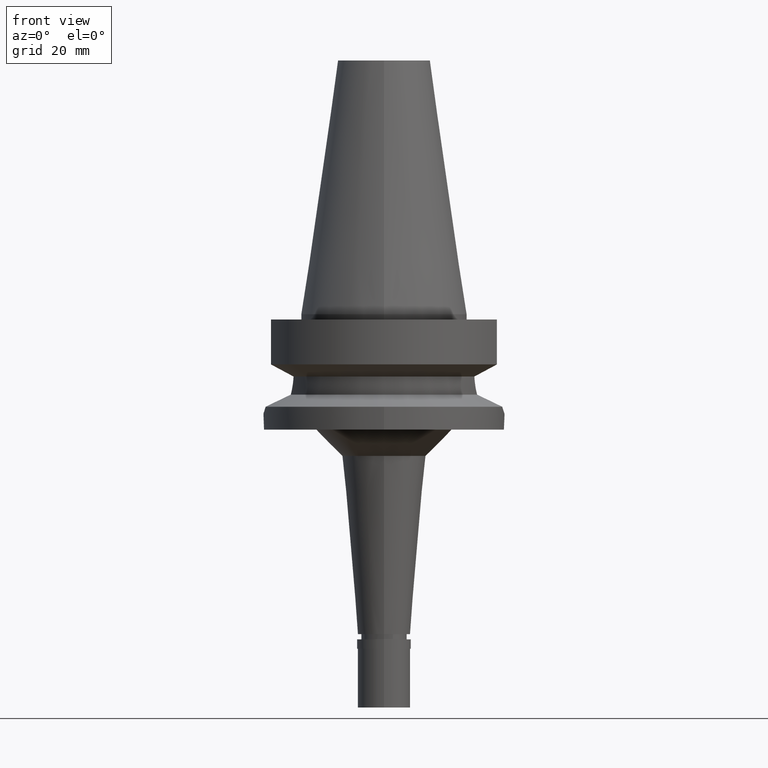
[diagram: clean part render]
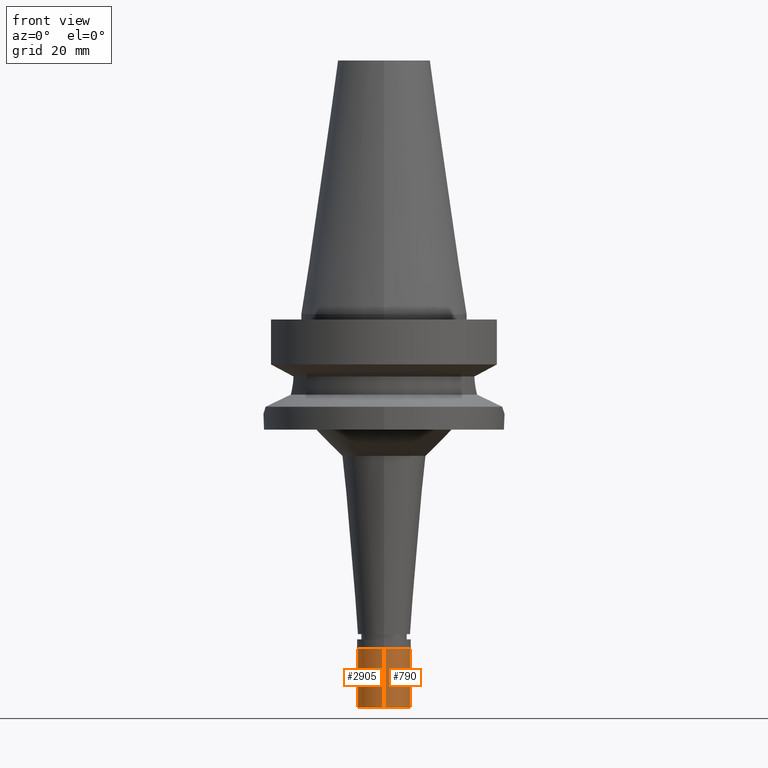
[diagram: same view with one multi-face feature highlighted, each face labeled with its STEP entity id]
A machine part, front view. The highlighted faces form ONE feature: a constant-radius fillet chain: 2 tangent blend faces with common blend radius 5 mm. The faces share edges in the B-rep.
Their STEP definitions:
[1] entity #790 (Cylinder):
#18 = DIRECTION ( 'NONE',  ( 0.0000000000000000000, 0.0000000000000000000, 1.000000000000000000 ) ) ;
#101 = FACE_OUTER_BOUND ( 'NONE', #1956, .T. ) ;
#114 = CARTESIAN_POINT ( 'NONE',  ( 0.0000000000000000000, -5.000000000000000000, -13.00000000000000000 ) ) ;
#415 = ORIENTED_EDGE ( 'NONE', *, *, #2489, .F. ) ;
#621 = VERTEX_POINT ( 'NONE', #114 ) ;
#622 = VERTEX_POINT ( 'NONE', #1734 ) ;
#625 = VECTOR ( 'NONE', #2892, 1000.000000000000000 ) ;
#628 = CARTESIAN_POINT ( 'NONE',  ( 0.0000000000000000000, -5.000000000000000000, -1.800000000000000044 ) ) ;
#670 = AXIS2_PLACEMENT_3D ( 'NONE', #1464, #1979, #2655 ) ;
#790 = ADVANCED_FACE ( 'NONE', ( #101 ), #1479, .T. ) ;
#931 = EDGE_CURVE ( 'NONE', #1564, #621, #2447, .T. ) ;
#1027 = CARTESIAN_POINT ( 'NONE',  ( 0.0000000000000000000, 0.0000000000000000000, -13.65000000000000036 ) ) ;
#1041 = ORIENTED_EDGE ( 'NONE', *, *, #931, .T. ) ;
#1286 = DIRECTION ( 'NONE',  ( 0.0000000000000000000, 0.0000000000000000000, 1.000000000000000000 ) ) ;
#1335 = DIRECTION ( 'NONE',  ( 0.0000000000000000000, 0.0000000000000000000, -1.000000000000000000 ) ) ;
#1464 = CARTESIAN_POINT ( 'NONE',  ( 0.0000000000000000000, 0.0000000000000000000, -1.800000000000000044 ) ) ;
#1468 = EDGE_CURVE ( 'NONE', #621, #622, #2946, .T. ) ;
#1479 = CYLINDRICAL_SURFACE ( 'NONE', #1546, 5.000000000000000000 ) ;
#1546 = AXIS2_PLACEMENT_3D ( 'NONE', #1027, #1286, #2143 ) ;
#1564 = VERTEX_POINT ( 'NONE', #628 ) ;
#1634 = ORIENTED_EDGE ( 'NONE', *, *, #2251, .T. ) ;
#1734 = CARTESIAN_POINT ( 'NONE',  ( 0.0000000000000000000, 5.000000000000000000, -13.00000000000000000 ) ) ;
#1956 = EDGE_LOOP ( 'NONE', ( #1634, #1041, #2673, #415 ) ) ;
#1979 = DIRECTION ( 'NONE',  ( 0.0000000000000000000, 0.0000000000000000000, -1.000000000000000000 ) ) ;
#2031 = AXIS2_PLACEMENT_3D ( 'NONE', #2278, #18, #2708 ) ;
#2036 = CARTESIAN_POINT ( 'NONE',  ( 0.0000000000000000000, -5.000000000000000000, -1.800000000000000044 ) ) ;
#2143 = DIRECTION ( 'NONE',  ( 0.0000000000000000000, 1.000000000000000000, 0.0000000000000000000 ) ) ;
#2251 = EDGE_CURVE ( 'NONE', #2859, #1564, #2315, .T. ) ;
#2278 = CARTESIAN_POINT ( 'NONE',  ( 0.0000000000000000000, 0.0000000000000000000, -13.00000000000000000 ) ) ;
#2284 = LINE ( 'NONE', #2912, #2717 ) ;
#2315 = CIRCLE ( 'NONE', #670, 5.000000000000000000 ) ;
#2383 = CARTESIAN_POINT ( 'NONE',  ( 0.0000000000000000000, 5.000000000000000000, -1.800000000000000044 ) ) ;
#2447 = LINE ( 'NONE', #2036, #625 ) ;
#2489 = EDGE_CURVE ( 'NONE', #2859, #622, #2284, .T. ) ;
#2655 = DIRECTION ( 'NONE',  ( 0.0000000000000000000, 1.000000000000000000, 0.0000000000000000000 ) ) ;
#2673 = ORIENTED_EDGE ( 'NONE', *, *, #1468, .T. ) ;
#2708 = DIRECTION ( 'NONE',  ( 0.0000000000000000000, -1.000000000000000000, 0.0000000000000000000 ) ) ;
#2717 = VECTOR ( 'NONE', #1335, 1000.000000000000000 ) ;
#2859 = VERTEX_POINT ( 'NONE', #2383 ) ;
#2892 = DIRECTION ( 'NONE',  ( 0.0000000000000000000, 0.0000000000000000000, -1.000000000000000000 ) ) ;
#2912 = CARTESIAN_POINT ( 'NONE',  ( 0.0000000000000000000, 5.000000000000000000, -1.800000000000000044 ) ) ;
#2946 = CIRCLE ( 'NONE', #2031, 5.000000000000000000 ) ;
[2] entity #2905 (Cylinder):
#83 = AXIS2_PLACEMENT_3D ( 'NONE', #85, #1039, #2429 ) ;
#85 = CARTESIAN_POINT ( 'NONE',  ( 0.0000000000000000000, 0.0000000000000000000, -1.800000000000000044 ) ) ;
#114 = CARTESIAN_POINT ( 'NONE',  ( 0.0000000000000000000, -5.000000000000000000, -13.00000000000000000 ) ) ;
#308 = DIRECTION ( 'NONE',  ( 0.0000000000000000000, 1.000000000000000000, 0.0000000000000000000 ) ) ;
#411 = EDGE_CURVE ( 'NONE', #622, #621, #1702, .T. ) ;
#621 = VERTEX_POINT ( 'NONE', #114 ) ;
#622 = VERTEX_POINT ( 'NONE', #1734 ) ;
#625 = VECTOR ( 'NONE', #2892, 1000.000000000000000 ) ;
#628 = CARTESIAN_POINT ( 'NONE',  ( 0.0000000000000000000, -5.000000000000000000, -1.800000000000000044 ) ) ;
#931 = EDGE_CURVE ( 'NONE', #1564, #621, #2447, .T. ) ;
#940 = AXIS2_PLACEMENT_3D ( 'NONE', #1443, #2155, #308 ) ;
#1039 = DIRECTION ( 'NONE',  ( 0.0000000000000000000, 0.0000000000000000000, -1.000000000000000000 ) ) ;
#1236 = DIRECTION ( 'NONE',  ( 0.0000000000000000000, 0.0000000000000000000, 1.000000000000000000 ) ) ;
#1332 = ORIENTED_EDGE ( 'NONE', *, *, #2489, .T. ) ;
#1335 = DIRECTION ( 'NONE',  ( 0.0000000000000000000, 0.0000000000000000000, -1.000000000000000000 ) ) ;
#1443 = CARTESIAN_POINT ( 'NONE',  ( 0.0000000000000000000, 0.0000000000000000000, -13.65000000000000036 ) ) ;
#1505 = AXIS2_PLACEMENT_3D ( 'NONE', #2387, #1236, #1897 ) ;
#1564 = VERTEX_POINT ( 'NONE', #628 ) ;
#1678 = CYLINDRICAL_SURFACE ( 'NONE', #940, 5.000000000000000000 ) ;
#1702 = CIRCLE ( 'NONE', #1505, 5.000000000000000000 ) ;
#1705 = ORIENTED_EDGE ( 'NONE', *, *, #931, .F. ) ;
#1734 = CARTESIAN_POINT ( 'NONE',  ( 0.0000000000000000000, 5.000000000000000000, -13.00000000000000000 ) ) ;
#1894 = CIRCLE ( 'NONE', #83, 5.000000000000000000 ) ;
#1897 = DIRECTION ( 'NONE',  ( 0.0000000000000000000, 1.000000000000000000, 0.0000000000000000000 ) ) ;
#2036 = CARTESIAN_POINT ( 'NONE',  ( 0.0000000000000000000, -5.000000000000000000, -1.800000000000000044 ) ) ;
#2155 = DIRECTION ( 'NONE',  ( 0.0000000000000000000, 0.0000000000000000000, 1.000000000000000000 ) ) ;
#2177 = ORIENTED_EDGE ( 'NONE', *, *, #411, .T. ) ;
#2284 = LINE ( 'NONE', #2912, #2717 ) ;
#2383 = CARTESIAN_POINT ( 'NONE',  ( 0.0000000000000000000, 5.000000000000000000, -1.800000000000000044 ) ) ;
#2387 = CARTESIAN_POINT ( 'NONE',  ( 0.0000000000000000000, 0.0000000000000000000, -13.00000000000000000 ) ) ;
#2429 = DIRECTION ( 'NONE',  ( 0.0000000000000000000, -1.000000000000000000, 0.0000000000000000000 ) ) ;
#2432 = ORIENTED_EDGE ( 'NONE', *, *, #2880, .T. ) ;
#2447 = LINE ( 'NONE', #2036, #625 ) ;
#2489 = EDGE_CURVE ( 'NONE', #2859, #622, #2284, .T. ) ;
#2624 = EDGE_LOOP ( 'NONE', ( #2177, #1705, #2432, #1332 ) ) ;
#2648 = FACE_OUTER_BOUND ( 'NONE', #2624, .T. ) ;
#2717 = VECTOR ( 'NONE', #1335, 1000.000000000000000 ) ;
#2859 = VERTEX_POINT ( 'NONE', #2383 ) ;
#2880 = EDGE_CURVE ( 'NONE', #1564, #2859, #1894, .T. ) ;
#2892 = DIRECTION ( 'NONE',  ( 0.0000000000000000000, 0.0000000000000000000, -1.000000000000000000 ) ) ;
#2905 = ADVANCED_FACE ( 'NONE', ( #2648 ), #1678, .T. ) ;
#2912 = CARTESIAN_POINT ( 'NONE',  ( 0.0000000000000000000, 5.000000000000000000, -1.800000000000000044 ) ) ;